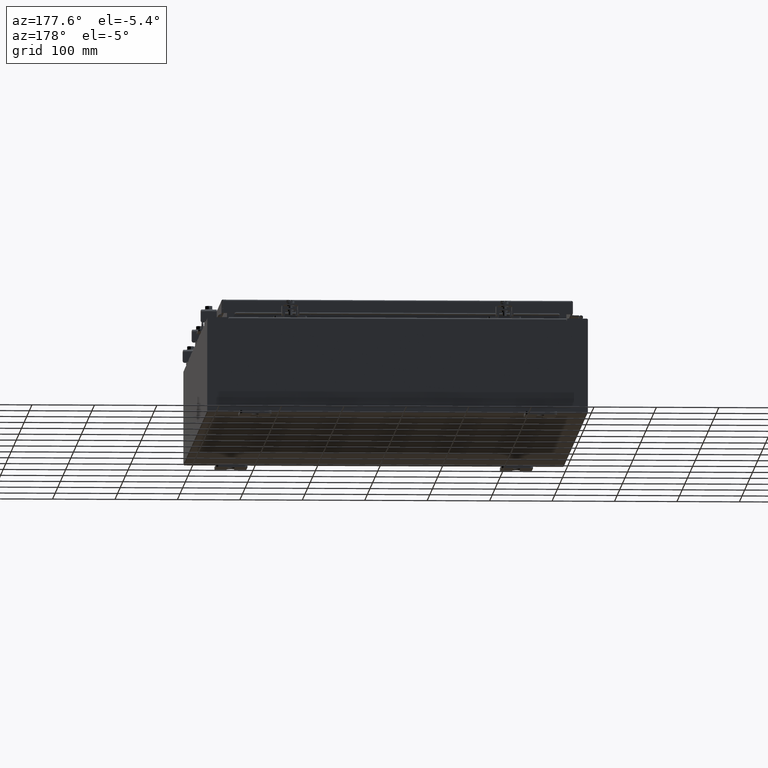
[diagram: clean part render]
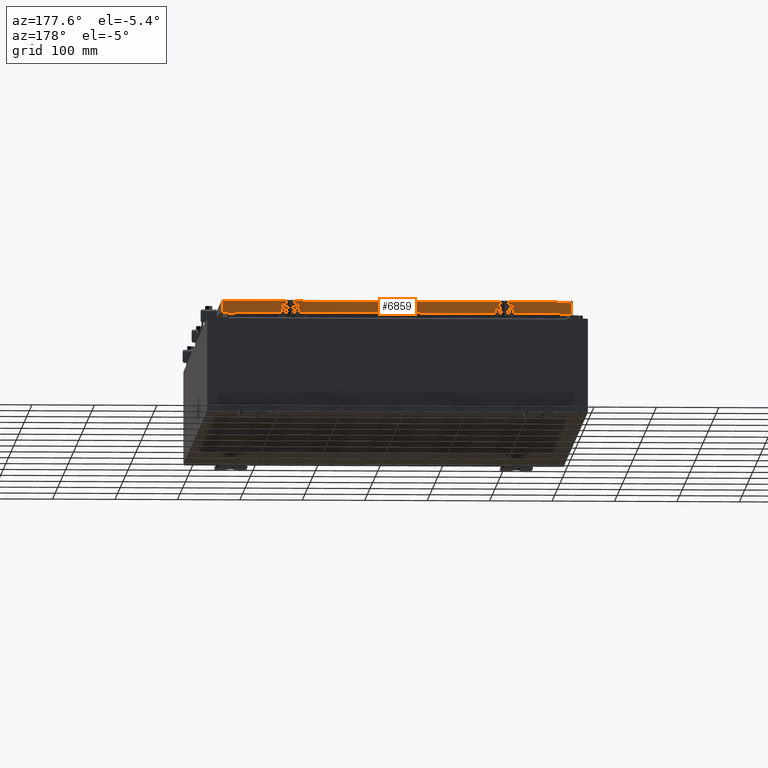
[diagram: same view with one face highlighted and labeled with its STEP entity id]
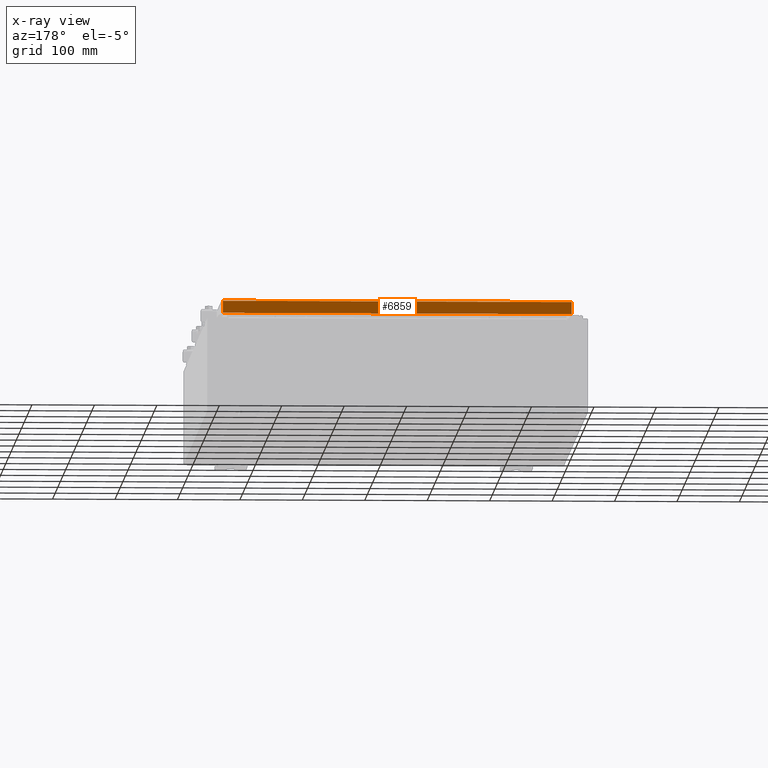
[diagram: x-ray of the same camera — body ghosted, the highlighted face saturated]
A machine part, auxiliary view. The second image highlights one B-rep face of the part: STEP entity #6859.
The next image is the same camera in x-ray: the body ghosted, the highlighted face saturated — about 0% of this face is hidden behind the body in this view.
In plain terms, the highlighted planar face has unit normal (0, -1, -0).
Its self-contained STEP definition (entity closure, byte-faithful):
#154 = CARTESIAN_POINT ( 'NONE',  ( 10.23915786437626500, 17.09400000000000800, -0.8500000000000033100 ) ) ;
#849 = ORIENTED_EDGE ( 'NONE', *, *, #38585, .T. ) ;
#2361 = ORIENTED_EDGE ( 'NONE', *, *, #39013, .F. ) ;
#2560 = CARTESIAN_POINT ( 'NONE',  ( -10.98915786437626900, 17.09400000000000800, -0.08770000000000007000 ) ) ;
#5038 = EDGE_CURVE ( 'NONE', #37005, #19383, #17682, .T. ) ;
#5062 = CARTESIAN_POINT ( 'NONE',  ( -5.941356432273426800E-030, 17.09400000000000800, 4.844676449176215600E-014 ) ) ;
#5574 = LINE ( 'NONE', #8582, #39551 ) ;
#5727 = LINE ( 'NONE', #30779, #30863 ) ;
#6140 = VERTEX_POINT ( 'NONE', #22962 ) ;
#6859 = ADVANCED_FACE ( 'NONE', ( #26535 ), #26428, .F. ) ;
#6910 = ORIENTED_EDGE ( 'NONE', *, *, #22888, .F. ) ;
#8001 = VERTEX_POINT ( 'NONE', #33022 ) ;
#8582 = CARTESIAN_POINT ( 'NONE',  ( -11.07800000000000300, 17.09400000000000800, -0.08770000000000007000 ) ) ;
#9285 = EDGE_LOOP ( 'NONE', ( #21517, #849, #6910, #2361, #36598, #9391 ) ) ;
#9391 = ORIENTED_EDGE ( 'NONE', *, *, #5038, .F. ) ;
#9732 = CARTESIAN_POINT ( 'NONE',  ( -11.07800000000000300, 17.09400000000000800, -0.8500000000000024200 ) ) ;
#11954 = DIRECTION ( 'NONE',  ( -1.000000000000000000, -3.475696988576942200E-031, -9.473942235605600700E-046 ) ) ;
#12042 = CARTESIAN_POINT ( 'NONE',  ( -10.98915786437627200, 17.09400000000000800, -0.07469999999999978000 ) ) ;
#13870 = VECTOR ( 'NONE', #35916, 39.37007874015748100 ) ;
#14758 = VECTOR ( 'NONE', #22448, 39.37007874015748100 ) ;
#16574 = VECTOR ( 'NONE', #26529, 39.37007874015748100 ) ;
#17682 = LINE ( 'NONE', #12042, #16574 ) ;
#19149 = CARTESIAN_POINT ( 'NONE',  ( -11.07800000000000300, 17.09400000000000800, -0.8500000000000024200 ) ) ;
#19383 = VERTEX_POINT ( 'NONE', #38274 ) ;
#19677 = DIRECTION ( 'NONE',  ( 1.000000000000000000, -0.0000000000000000000, -0.0000000000000000000 ) ) ;
#21517 = ORIENTED_EDGE ( 'NONE', *, *, #31585, .F. ) ;
#22448 = DIRECTION ( 'NONE',  ( 1.000000000000000000, -4.379057701015054300E-047, 1.233005954894504400E-016 ) ) ;
#22888 = EDGE_CURVE ( 'NONE', #41689, #24462, #25077, .T. ) ;
#22962 = CARTESIAN_POINT ( 'NONE',  ( 10.98915786437626500, 17.09400000000000800, -0.08770000000000007000 ) ) ;
#24226 = DIRECTION ( 'NONE',  ( 0.0000000000000000000, 2.818880942772350300E-015, -1.000000000000000000 ) ) ;
#24462 = VERTEX_POINT ( 'NONE', #38665 ) ;
#25077 = LINE ( 'NONE', #9732, #13870 ) ;
#26428 = PLANE ( 'NONE',  #41901 ) ;
#26529 = DIRECTION ( 'NONE',  ( -0.0000000000000000000, 2.818880942772350300E-015, -1.000000000000000000 ) ) ;
#26535 = FACE_OUTER_BOUND ( 'NONE', #9285, .T. ) ;
#29109 = DIRECTION ( 'NONE',  ( 0.0000000000000000000, 2.818880942772350300E-015, -1.000000000000000000 ) ) ;
#29160 = DIRECTION ( 'NONE',  ( 3.475696988576941300E-031, -1.000000000000000000, -2.818880942772350300E-015 ) ) ;
#30779 = CARTESIAN_POINT ( 'NONE',  ( 10.98915786437626500, 17.09400000000000800, 4.844676449176215600E-014 ) ) ;
#30863 = VECTOR ( 'NONE', #24226, 39.37007874015748100 ) ;
#31585 = EDGE_CURVE ( 'NONE', #6140, #37005, #5574, .T. ) ;
#32908 = LINE ( 'NONE', #42589, #34985 ) ;
#33022 = CARTESIAN_POINT ( 'NONE',  ( -10.23915786437626900, 17.09400000000000800, -0.8500000000000033100 ) ) ;
#34985 = VECTOR ( 'NONE', #19677, 39.37007874015748100 ) ;
#35916 = DIRECTION ( 'NONE',  ( 1.000000000000000000, -4.379057701015054300E-047, 1.233005954894504400E-016 ) ) ;
#36598 = ORIENTED_EDGE ( 'NONE', *, *, #41476, .F. ) ;
#37005 = VERTEX_POINT ( 'NONE', #2560 ) ;
#38274 = CARTESIAN_POINT ( 'NONE',  ( -10.98915786437627200, 17.09400000000000800, -0.8500000000000024200 ) ) ;
#38585 = EDGE_CURVE ( 'NONE', #6140, #24462, #5727, .T. ) ;
#38665 = CARTESIAN_POINT ( 'NONE',  ( 10.98915786437626500, 17.09400000000000800, -0.8499999999999996400 ) ) ;
#39013 = EDGE_CURVE ( 'NONE', #8001, #41689, #32908, .T. ) ;
#39551 = VECTOR ( 'NONE', #11954, 39.37007874015748100 ) ;
#40917 = LINE ( 'NONE', #19149, #14758 ) ;
#41476 = EDGE_CURVE ( 'NONE', #19383, #8001, #40917, .T. ) ;
#41689 = VERTEX_POINT ( 'NONE', #154 ) ;
#41901 = AXIS2_PLACEMENT_3D ( 'NONE', #5062, #29160, #29109 ) ;
#42589 = CARTESIAN_POINT ( 'NONE',  ( -10.23915786437626900, 17.09400000000000800, -0.8500000000000033100 ) ) ;